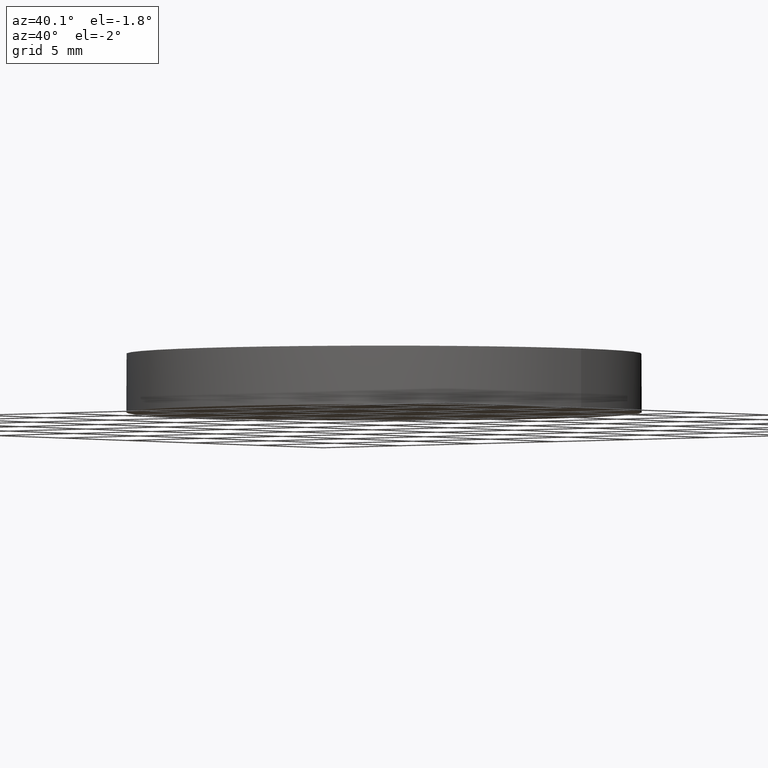
[diagram: clean part render]
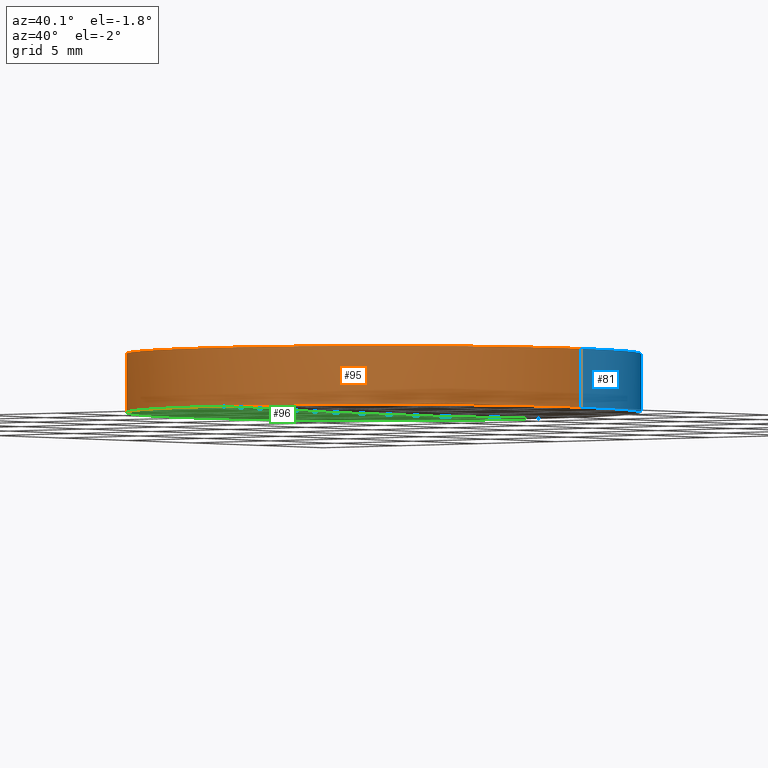
[diagram: same view with three faces highlighted in distinct colors, each labeled with its STEP entity id]
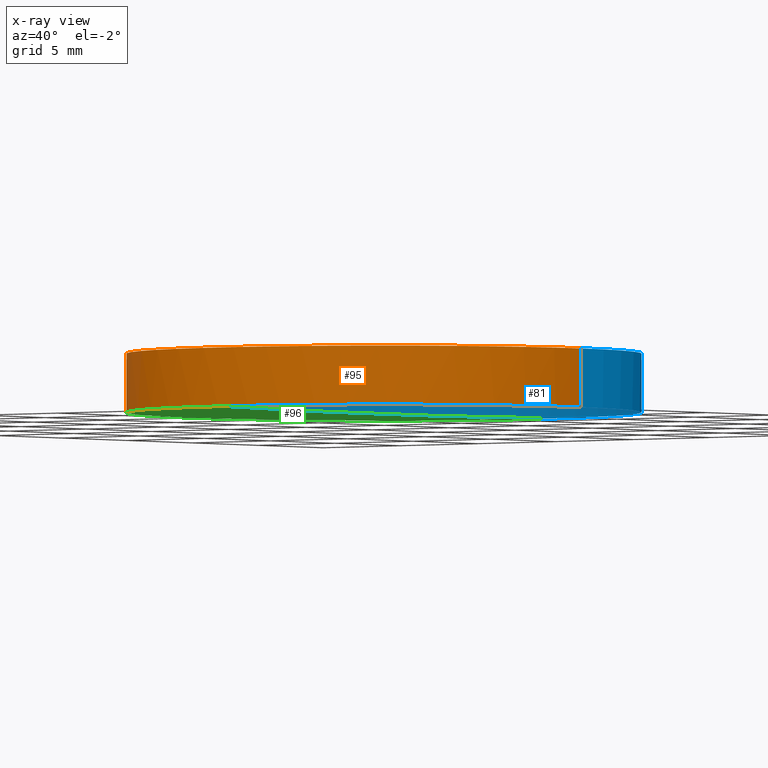
[diagram: x-ray of the same camera — body ghosted, the three highlighted faces saturated]
A machine part, auxiliary view with three faces highlighted in distinct colors.
The next image is the same camera in x-ray (body ghosted, the three faces saturated) — at least one of them is partly hidden behind the body in this view.
Their STEP definitions:

[orange] entity #95 — the highlighted cylindrical surface (partial cylindrical patch) has radius 12.7 mm, axis along (0, 0, 1).
#1 = VECTOR ( 'NONE', #207, 1000.000000000000000 ) ;
#3 = CARTESIAN_POINT ( 'NONE',  ( -12.69999999999999900, 3.997792089092478900E-015, 3.000000000000000000 ) ) ;
#4 = AXIS2_PLACEMENT_3D ( 'NONE', #105, #234, #82 ) ;
#10 = CARTESIAN_POINT ( 'NONE',  ( 12.69999999999999900, 2.442490654175340100E-015, 0.1036637186161520100 ) ) ;
#11 = AXIS2_PLACEMENT_3D ( 'NONE', #154, #41, #174 ) ;
#23 = CYLINDRICAL_SURFACE ( 'NONE', #11, 12.69999999999999900 ) ;
#25 = DIRECTION ( 'NONE',  ( 1.000000000000000000, 0.0000000000000000000, 0.0000000000000000000 ) ) ;
#34 = AXIS2_PLACEMENT_3D ( 'NONE', #77, #228, #178 ) ;
#36 = FACE_OUTER_BOUND ( 'NONE', #216, .T. ) ;
#41 = DIRECTION ( 'NONE',  ( 0.0000000000000000000, 0.0000000000000000000, 1.000000000000000000 ) ) ;
#50 = ORIENTED_EDGE ( 'NONE', *, *, #149, .F. ) ;
#55 = ORIENTED_EDGE ( 'NONE', *, *, #113, .F. ) ;
#57 = VERTEX_POINT ( 'NONE', #94 ) ;
#67 = VERTEX_POINT ( 'NONE', #3 ) ;
#73 = CARTESIAN_POINT ( 'NONE',  ( 12.69999999999999900, 2.442490654175340100E-015, 0.1036637186161520100 ) ) ;
#76 = DIRECTION ( 'NONE',  ( -0.0000000000000000000, -0.0000000000000000000, -1.000000000000000000 ) ) ;
#77 = CARTESIAN_POINT ( 'NONE',  ( 4.996003610813200500E-016, 2.442490654175340100E-015, 3.000000000000000000 ) ) ;
#78 = CARTESIAN_POINT ( 'NONE',  ( -12.69999999999999900, 3.997792089092478900E-015, 0.1036637186161520100 ) ) ;
#79 = CIRCLE ( 'NONE', #4, 12.69999999999999900 ) ;
#82 = DIRECTION ( 'NONE',  ( 1.000000000000000000, 0.0000000000000000000, 0.0000000000000000000 ) ) ;
#84 = ORIENTED_EDGE ( 'NONE', *, *, #86, .T. ) ;
#85 = ORIENTED_EDGE ( 'NONE', *, *, #190, .F. ) ;
#86 = EDGE_CURVE ( 'NONE', #220, #57, #179, .T. ) ;
#94 = CARTESIAN_POINT ( 'NONE',  ( 12.69999999999999900, 2.442490654175340100E-015, 3.000000000000000000 ) ) ;
#95 = ADVANCED_FACE ( 'NONE', ( #36 ), #23, .T. ) ;
#100 = DIRECTION ( 'NONE',  ( 0.0000000000000000000, 0.0000000000000000000, 1.000000000000000000 ) ) ;
#105 = CARTESIAN_POINT ( 'NONE',  ( 4.996003610813200500E-016, 2.442490654175340100E-015, 0.1036637186161520100 ) ) ;
#108 = LINE ( 'NONE', #195, #229 ) ;
#113 = EDGE_CURVE ( 'NONE', #194, #67, #108, .T. ) ;
#126 = VERTEX_POINT ( 'NONE', #204 ) ;
#146 = CIRCLE ( 'NONE', #213, 12.69999999999999900 ) ;
#149 = EDGE_CURVE ( 'NONE', #126, #194, #146, .T. ) ;
#154 = CARTESIAN_POINT ( 'NONE',  ( 4.996003610813200500E-016, 2.442490654175340100E-015, 0.1036637186161520100 ) ) ;
#164 = CIRCLE ( 'NONE', #34, 12.69999999999999900 ) ;
#169 = EDGE_CURVE ( 'NONE', #57, #67, #164, .T. ) ;
#174 = DIRECTION ( 'NONE',  ( 1.000000000000000000, 0.0000000000000000000, 0.0000000000000000000 ) ) ;
#178 = DIRECTION ( 'NONE',  ( 1.000000000000000000, 0.0000000000000000000, 0.0000000000000000000 ) ) ;
#179 = LINE ( 'NONE', #73, #1 ) ;
#184 = ORIENTED_EDGE ( 'NONE', *, *, #169, .T. ) ;
#190 = EDGE_CURVE ( 'NONE', #220, #126, #79, .T. ) ;
#194 = VERTEX_POINT ( 'NONE', #78 ) ;
#195 = CARTESIAN_POINT ( 'NONE',  ( -12.69999999999999900, 3.997792089092478900E-015, 0.1036637186161520100 ) ) ;
#204 = CARTESIAN_POINT ( 'NONE',  ( -4.320418915923616000E-013, -12.70000000000398900, 0.1036637186161473300 ) ) ;
#207 = DIRECTION ( 'NONE',  ( 0.0000000000000000000, 0.0000000000000000000, 1.000000000000000000 ) ) ;
#209 = CARTESIAN_POINT ( 'NONE',  ( 4.996003610813200500E-016, 2.442490654175340100E-015, 0.1036637186161520100 ) ) ;
#213 = AXIS2_PLACEMENT_3D ( 'NONE', #209, #76, #25 ) ;
#216 = EDGE_LOOP ( 'NONE', ( #55, #50, #85, #84, #184 ) ) ;
#220 = VERTEX_POINT ( 'NONE', #10 ) ;
#228 = DIRECTION ( 'NONE',  ( -0.0000000000000000000, -0.0000000000000000000, -1.000000000000000000 ) ) ;
#229 = VECTOR ( 'NONE', #100, 1000.000000000000000 ) ;
#234 = DIRECTION ( 'NONE',  ( -0.0000000000000000000, -0.0000000000000000000, -1.000000000000000000 ) ) ;

[blue] entity #81 — the highlighted cylindrical surface (partial cylindrical patch) has radius 12.7 mm, axis along (0, 0, 1).
#1 = VECTOR ( 'NONE', #207, 1000.000000000000000 ) ;
#2 = CARTESIAN_POINT ( 'NONE',  ( 4.996003610813200500E-016, 2.442490654175340100E-015, 0.1036637186161520100 ) ) ;
#3 = CARTESIAN_POINT ( 'NONE',  ( -12.69999999999999900, 3.997792089092478900E-015, 3.000000000000000000 ) ) ;
#6 = DIRECTION ( 'NONE',  ( 1.000000000000000000, 0.0000000000000000000, 0.0000000000000000000 ) ) ;
#9 = ORIENTED_EDGE ( 'NONE', *, *, #86, .F. ) ;
#10 = CARTESIAN_POINT ( 'NONE',  ( 12.69999999999999900, 2.442490654175340100E-015, 0.1036637186161520100 ) ) ;
#12 = DIRECTION ( 'NONE',  ( -0.0000000000000000000, -0.0000000000000000000, -1.000000000000000000 ) ) ;
#16 = ORIENTED_EDGE ( 'NONE', *, *, #113, .T. ) ;
#18 = EDGE_CURVE ( 'NONE', #194, #140, #191, .T. ) ;
#19 = CIRCLE ( 'NONE', #221, 12.69999999999999900 ) ;
#20 = DIRECTION ( 'NONE',  ( -0.0000000000000000000, -0.0000000000000000000, -1.000000000000000000 ) ) ;
#22 = EDGE_CURVE ( 'NONE', #67, #57, #19, .T. ) ;
#24 = ORIENTED_EDGE ( 'NONE', *, *, #18, .F. ) ;
#57 = VERTEX_POINT ( 'NONE', #94 ) ;
#60 = CARTESIAN_POINT ( 'NONE',  ( -4.244522995091619500E-013, 12.70000000000398900, 0.1036637186161473300 ) ) ;
#67 = VERTEX_POINT ( 'NONE', #3 ) ;
#73 = CARTESIAN_POINT ( 'NONE',  ( 12.69999999999999900, 2.442490654175340100E-015, 0.1036637186161520100 ) ) ;
#75 = FACE_OUTER_BOUND ( 'NONE', #208, .T. ) ;
#78 = CARTESIAN_POINT ( 'NONE',  ( -12.69999999999999900, 3.997792089092478900E-015, 0.1036637186161520100 ) ) ;
#81 = ADVANCED_FACE ( 'NONE', ( #75 ), #129, .T. ) ;
#86 = EDGE_CURVE ( 'NONE', #220, #57, #179, .T. ) ;
#89 = AXIS2_PLACEMENT_3D ( 'NONE', #116, #172, #156 ) ;
#92 = DIRECTION ( 'NONE',  ( 1.000000000000000000, 0.0000000000000000000, 0.0000000000000000000 ) ) ;
#94 = CARTESIAN_POINT ( 'NONE',  ( 12.69999999999999900, 2.442490654175340100E-015, 3.000000000000000000 ) ) ;
#100 = DIRECTION ( 'NONE',  ( 0.0000000000000000000, 0.0000000000000000000, 1.000000000000000000 ) ) ;
#103 = CIRCLE ( 'NONE', #109, 12.69999999999999900 ) ;
#104 = AXIS2_PLACEMENT_3D ( 'NONE', #2, #20, #92 ) ;
#108 = LINE ( 'NONE', #195, #229 ) ;
#109 = AXIS2_PLACEMENT_3D ( 'NONE', #121, #12, #177 ) ;
#113 = EDGE_CURVE ( 'NONE', #194, #67, #108, .T. ) ;
#115 = EDGE_CURVE ( 'NONE', #140, #220, #103, .T. ) ;
#116 = CARTESIAN_POINT ( 'NONE',  ( 4.996003610813200500E-016, 2.442490654175340100E-015, 0.1036637186161520100 ) ) ;
#117 = DIRECTION ( 'NONE',  ( -0.0000000000000000000, -0.0000000000000000000, -1.000000000000000000 ) ) ;
#121 = CARTESIAN_POINT ( 'NONE',  ( 4.996003610813200500E-016, 2.442490654175340100E-015, 0.1036637186161520100 ) ) ;
#129 = CYLINDRICAL_SURFACE ( 'NONE', #89, 12.69999999999999900 ) ;
#140 = VERTEX_POINT ( 'NONE', #60 ) ;
#156 = DIRECTION ( 'NONE',  ( 1.000000000000000000, 0.0000000000000000000, 0.0000000000000000000 ) ) ;
#172 = DIRECTION ( 'NONE',  ( 0.0000000000000000000, 0.0000000000000000000, 1.000000000000000000 ) ) ;
#176 = ORIENTED_EDGE ( 'NONE', *, *, #22, .T. ) ;
#177 = DIRECTION ( 'NONE',  ( 1.000000000000000000, -8.881784197001252300E-016, 0.0000000000000000000 ) ) ;
#179 = LINE ( 'NONE', #73, #1 ) ;
#191 = CIRCLE ( 'NONE', #104, 12.69999999999999900 ) ;
#194 = VERTEX_POINT ( 'NONE', #78 ) ;
#195 = CARTESIAN_POINT ( 'NONE',  ( -12.69999999999999900, 3.997792089092478900E-015, 0.1036637186161520100 ) ) ;
#202 = ORIENTED_EDGE ( 'NONE', *, *, #115, .F. ) ;
#207 = DIRECTION ( 'NONE',  ( 0.0000000000000000000, 0.0000000000000000000, 1.000000000000000000 ) ) ;
#208 = EDGE_LOOP ( 'NONE', ( #24, #16, #176, #9, #202 ) ) ;
#220 = VERTEX_POINT ( 'NONE', #10 ) ;
#221 = AXIS2_PLACEMENT_3D ( 'NONE', #227, #117, #6 ) ;
#227 = CARTESIAN_POINT ( 'NONE',  ( 4.996003610813200500E-016, 2.442490654175340100E-015, 3.000000000000000000 ) ) ;
#229 = VECTOR ( 'NONE', #100, 1000.000000000000000 ) ;

[green] entity #96 — the highlighted face is a freeform B-spline surface patch.
#2 = CARTESIAN_POINT ( 'NONE',  ( 4.996003610813200500E-016, 2.442490654175340100E-015, 0.1036637186161520100 ) ) ;
#5 = CARTESIAN_POINT ( 'NONE',  ( -6.175615574477432200E-013, 4.284518518352576200, -0.03539205925734099200 ) ) ;
#13 = DIRECTION ( 'NONE',  ( -2.988028379211528500E-016, -1.000000000000000000, 5.708087530206460600E-016 ) ) ;
#18 = EDGE_CURVE ( 'NONE', #194, #140, #191, .T. ) ;
#20 = DIRECTION ( 'NONE',  ( -0.0000000000000000000, -0.0000000000000000000, -1.000000000000000000 ) ) ;
#21 = CARTESIAN_POINT ( 'NONE',  ( -12.77677437270932800, 4.284518518352578900, 0.06952410036593643900 ) ) ;
#25 = DIRECTION ( 'NONE',  ( 1.000000000000000000, 0.0000000000000000000, 0.0000000000000000000 ) ) ;
#39 = CARTESIAN_POINT ( 'NONE',  ( -8.516634782020315000, -12.85238621723088000, 0.1411329946494032100 ) ) ;
#52 = CIRCLE ( 'NONE', #128, 778.0000000000000000 ) ;
#56 = CARTESIAN_POINT ( 'NONE',  ( -8.518184611386796900, 4.284518518352578900, -0.0004192200360875735100 ) ) ;
#60 = CARTESIAN_POINT ( 'NONE',  ( -4.244522995091619500E-013, 12.70000000000398900, 0.1036637186161473300 ) ) ;
#71 = CARTESIAN_POINT ( 'NONE',  ( -4.258389171384096400, -12.85238621723088000, 0.1061665185132137200 ) ) ;
#76 = DIRECTION ( 'NONE',  ( -0.0000000000000000000, -0.0000000000000000000, -1.000000000000000000 ) ) ;
#78 = CARTESIAN_POINT ( 'NONE',  ( -12.69999999999999900, 3.997792089092478900E-015, 0.1036637186161520100 ) ) ;
#80 = CARTESIAN_POINT ( 'NONE',  ( -4.258389171384089300, 12.85238621723093600, 0.1061665185132137400 ) ) ;
#88 = CARTESIAN_POINT ( 'NONE',  ( -12.77677437270933000, -4.284518518352518500, 0.06952410036593703600 ) ) ;
#90 = CARTESIAN_POINT ( 'NONE',  ( -4.259164099129693100, -4.284518518352522100, -0.03539205925733825800 ) ) ;
#92 = DIRECTION ( 'NONE',  ( 1.000000000000000000, 0.0000000000000000000, 0.0000000000000000000 ) ) ;
#96 = ADVANCED_FACE ( 'NONE', ( #143 ), #130, .T. ) ;
#104 = AXIS2_PLACEMENT_3D ( 'NONE', #2, #20, #92 ) ;
#111 = ORIENTED_EDGE ( 'NONE', *, *, #18, .T. ) ;
#114 = CARTESIAN_POINT ( 'NONE',  ( -4.259164099129691300, 4.284518518352578000, -0.03539205925733885500 ) ) ;
#126 = VERTEX_POINT ( 'NONE', #204 ) ;
#128 = AXIS2_PLACEMENT_3D ( 'NONE', #165, #211, #13 ) ;
#130 =( BOUNDED_SURFACE ( )  B_SPLINE_SURFACE ( 3, 3, ( 
 ( #193, #39, #71, #224 ),
 ( #88, #206, #90, #132 ),
 ( #21, #56, #114, #5 ),
 ( #133, #159, #80, #196 ) ),
 .UNSPECIFIED., .F., .F., .T. ) 
 B_SPLINE_SURFACE_WITH_KNOTS ( ( 4, 4 ),
 ( 4, 4 ),
 ( 0.0000000000000000000, 1.000000000000000000 ),
 ( 0.0000000000000000000, 1.000000000000000000 ),
 .UNSPECIFIED. ) 
 GEOMETRIC_REPRESENTATION_ITEM ( )  RATIONAL_B_SPLINE_SURFACE ( (
 ( 1.000000000000000000, 0.9999775250309488300, 0.9999775250309488300, 1.000000000000000000),
 ( 0.9999090261195259200, 0.9998865531951098800, 0.9998865531951098800, 0.9999090261195259200),
 ( 0.9999090261195259200, 0.9998865531951098800, 0.9998865531951098800, 0.9999090261195259200),
 ( 1.000000000000000000, 0.9999775250309488300, 0.9999775250309488300, 1.000000000000000000) ) ) 
 REPRESENTATION_ITEM ( '' )  SURFACE ( )  );
#132 = CARTESIAN_POINT ( 'NONE',  ( -6.192962809237201300E-013, -4.284518518352522100, -0.03539205925734039600 ) ) ;
#133 = CARTESIAN_POINT ( 'NONE',  ( -12.77444972009434900, 12.85238621723093600, 0.2110635893103340900 ) ) ;
#136 = EDGE_LOOP ( 'NONE', ( #188, #168, #111 ) ) ;
#140 = VERTEX_POINT ( 'NONE', #60 ) ;
#143 = FACE_OUTER_BOUND ( 'NONE', #136, .T. ) ;
#146 = CIRCLE ( 'NONE', #213, 12.69999999999999900 ) ;
#149 = EDGE_CURVE ( 'NONE', #126, #194, #146, .T. ) ;
#159 = CARTESIAN_POINT ( 'NONE',  ( -8.516634782020309700, 12.85238621723093600, 0.1411329946494032100 ) ) ;
#165 = CARTESIAN_POINT ( 'NONE',  ( -2.273736754432320100E-013, 0.0000000000000000000, 778.0000000000000000 ) ) ;
#168 = ORIENTED_EDGE ( 'NONE', *, *, #149, .T. ) ;
#188 = ORIENTED_EDGE ( 'NONE', *, *, #231, .F. ) ;
#191 = CIRCLE ( 'NONE', #104, 12.69999999999999900 ) ;
#193 = CARTESIAN_POINT ( 'NONE',  ( -12.77444972009435600, -12.85238621723087600, 0.2110635893103340900 ) ) ;
#194 = VERTEX_POINT ( 'NONE', #78 ) ;
#196 = CARTESIAN_POINT ( 'NONE',  ( -6.140921104957897100E-013, 12.85238621723093300, 0.1061665185132116100 ) ) ;
#204 = CARTESIAN_POINT ( 'NONE',  ( -4.320418915923616000E-013, -12.70000000000398900, 0.1036637186161473300 ) ) ;
#206 = CARTESIAN_POINT ( 'NONE',  ( -8.518184611386798700, -4.284518518352521200, -0.0004192200360869771400 ) ) ;
#209 = CARTESIAN_POINT ( 'NONE',  ( 4.996003610813200500E-016, 2.442490654175340100E-015, 0.1036637186161520100 ) ) ;
#211 = DIRECTION ( 'NONE',  ( 1.000000000000000000, -2.988028379211529900E-016, -2.582264637827899900E-016 ) ) ;
#213 = AXIS2_PLACEMENT_3D ( 'NONE', #209, #76, #25 ) ;
#224 = CARTESIAN_POINT ( 'NONE',  ( -6.210310043996969400E-013, -12.85238621723088000, 0.1061665185132116100 ) ) ;
#231 = EDGE_CURVE ( 'NONE', #126, #140, #52, .T. ) ;